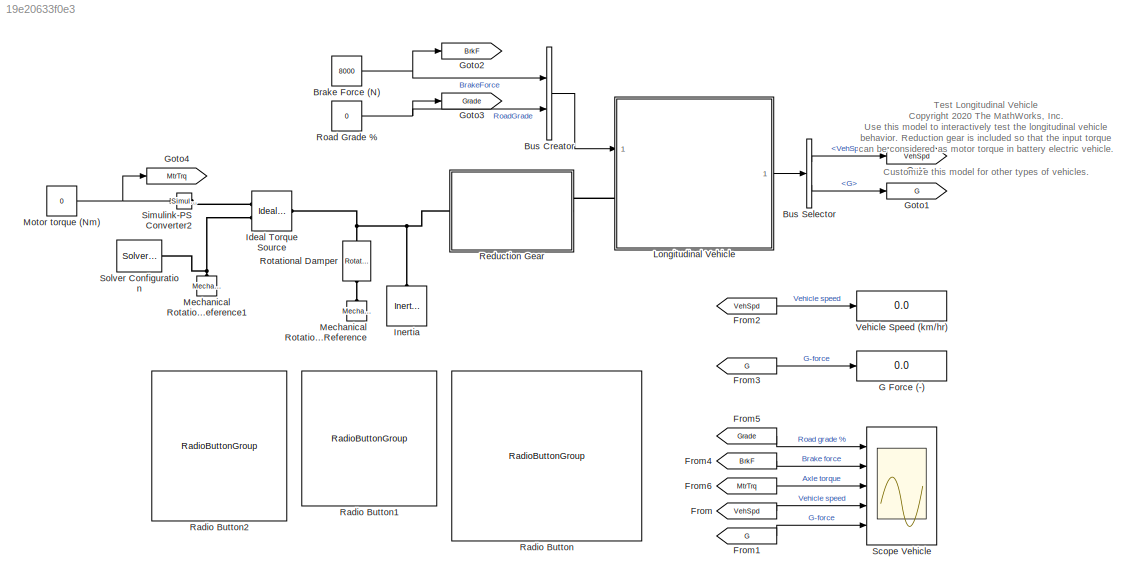
MODEL slx_19e20633f0e3
KIND model
CONFIG AbsTol = 1e-3
CONFIG EnableMultiTasking = off
CONFIG FixedStep = auto
CONFIG MaxStep = auto
CONFIG MinStep = auto
CONFIG PreLoadFcn = Vehicle1DBasic_testParams\n
CONFIG RelTol = 1e-3
CONFIG SampleTimeConstraint = Unconstrained
CONFIG SolverName = VariableStepAuto
CONFIG StartTime = 0.0
CONFIG StopTime = 120
BLOCK [Constant] Brake Force (N)
  NameLocation = left
  Value = 8000
BLOCK [BusCreator] Bus Creator
  DisplayOption = bar
  InheritFromInputs = on
  Inputs = 2
  Ports = [2, 1]
BLOCK [BusSelector] Bus Selector
  OutputSignals = VehSpd,G
  Ports = [1, 2]
BLOCK [From] From
  GotoTag = VehSpd
BLOCK [From] From1
  GotoTag = G
BLOCK [From] From2
  GotoTag = VehSpd
BLOCK [From] From3
  GotoTag = G
BLOCK [From] From4
  GotoTag = BrkF
BLOCK [From] From5
  GotoTag = Grade
BLOCK [From] From6
  GotoTag = MtrTrq
BLOCK [Display] G Force (-)
  Decimation = 1
  Ports = [1]
BLOCK [Goto] Goto
  GotoTag = VehSpd
BLOCK [Goto] Goto1
  GotoTag = G
BLOCK [Goto] Goto2
  GotoTag = BrkF
BLOCK [Goto] Goto3
  GotoTag = Grade
BLOCK [Goto] Goto4
  GotoTag = MtrTrq
BLOCK [Reference] Ideal Torque Source  REF=fl_lib/Mechanical/Mechanical Sources/Ideal Torque Source
  Ports = [0, 0, 0, 0, 0, 1, 2]
  SourceBlock = fl_lib/Mechanical/Mechanical Sources/Ideal Torque Source
  SourceProductBaseCode = SS
  SourceType = Ideal Torque Source
BLOCK [Reference] Inertia  REF=fl_lib/Mechanical/Rotational Elements/Inertia
  AttributesFormatString = %<inertia> %<inertia_unit>
  NameLocation = right
  Ports = [0, 0, 0, 0, 0, 1]
  SourceBlock = fl_lib/Mechanical/Rotational Elements/Inertia
  SourceProductBaseCode = SS
  SourceType = Inertia
BLOCK [SubSystem] Longitudinal Vehicle
  Ports = [1, 1, 0, 0, 0, 1]
  ReferencedSubsystem = Vehicle1DBasicRefSub
  RequestExecContextInheritance = off
BLOCK [Reference] Mechanical Rotational Reference  REF=fl_lib/Mechanical/Rotational Elements/Mechanical
Rotational Reference
  NameLocation = right
  Ports = [0, 0, 0, 0, 0, 1]
  SourceBlock = fl_lib/Mechanical/Rotational Elements/Mechanical\nRotational Reference
  SourceProductBaseCode = SS
  SourceType = Mechanical\nRotational Reference
BLOCK [Reference] Mechanical Rotational Reference1  REF=fl_lib/Mechanical/Rotational Elements/Mechanical
Rotational Reference
  NameLocation = right
  Ports = [0, 0, 0, 0, 0, 1]
  SourceBlock = fl_lib/Mechanical/Rotational Elements/Mechanical\nRotational Reference
  SourceProductBaseCode = SS
  SourceType = Mechanical\nRotational Reference
BLOCK [Constant] Motor torque (Nm)
  Value = 0
BLOCK [RadioButtonGroup] Radio Button
  ButtonGroupName = Group
  SelectedLabel = 0
BLOCK [RadioButtonGroup] Radio Button1
  ButtonGroupName = Group
  SelectedLabel = 8000 N
BLOCK [RadioButtonGroup] Radio Button2
  ButtonGroupName = Group
  SelectedLabel = 0
BLOCK [SubSystem] Reduction Gear
  Ports = [0, 0, 0, 0, 0, 1, 1]
  ReferencedSubsystem = ReducerBasicRefSub
  RequestExecContextInheritance = off
BLOCK [Constant] Road Grade %
  NameLocation = left
  Value = 0
BLOCK [Reference] Rotational Damper  REF=fl_lib/Mechanical/Rotational Elements/Rotational Damper
  AttributesFormatString = %<D> %<D_unit>
  NameLocation = left
  Ports = [0, 0, 0, 0, 0, 1, 1]
  SourceBlock = fl_lib/Mechanical/Rotational Elements/Rotational Damper
  SourceProductBaseCode = SS
  SourceType = Rotational Damper
BLOCK [Scope] Scope Vehicle
  Floating = off
  NumInputPorts = 5
  Ports = [5]
  ScopeSpecificationString = Simulink.scopes.TimeScopeBlockCfg('CurrentConfiguration', extmgr.ConfigurationSet(extmgr.Configuration('Core','General UI',true),extmgr.Configuration('Core','Source UI',true),extmgr.Configuration('Sources','WiredSimulink',true,'DataLoggingVariableName','ScopeData1'),extmgr.Configuration('Visuals','Time Domain',true,'SerializedDisplays',{struct('MinYLimReal','-35.00000','MaxYLimReal','15.00000','YL...<+4977ch>
BLOCK [Reference] Simulink-PS Converter2  REF=nesl_utility/Simulink-PS
Converter
  AttributesFormatString = %<Unit>
  Ports = [1, 0, 0, 0, 0, 0, 1]
  SourceBlock = nesl_utility/Simulink-PS\nConverter
  SourceProductBaseCode = SS
  SourceType = Simulink-PS\nConverter
BLOCK [Reference] Solver Configuration  REF=nesl_utility/Solver
Configuration
  AttributesFormatString = Local solver %<UseLocalSolver>
  Ports = [0, 0, 0, 0, 0, 0, 1]
  SourceBlock = nesl_utility/Solver\nConfiguration
  SourceProductBaseCode = SS
  SourceType = Solver\nConfiguration
BLOCK [Display] Vehicle Speed (km//hr)
  Decimation = 1
  Ports = [1]
ANNOTATION (root): Test Longitudinal Vehicle <copyright redacted>
NET Brake Force (N):1 -> Bus Creator:1, Goto2:1
LINE Bus Creator:1 -> Longitudinal Vehicle:1
LINE Bus Selector:1 -> Goto:1
LINE Bus Selector:2 -> Goto1:1
LINE From1:1 -> Scope Vehicle:5
LINE From2:1 -> Vehicle Speed (km//hr):1
LINE From3:1 -> G Force (-):1
LINE From4:1 -> Scope Vehicle:2
LINE From5:1 -> Scope Vehicle:1
LINE From6:1 -> Scope Vehicle:3
LINE From:1 -> Scope Vehicle:4
LINE Longitudinal Vehicle:1 -> Bus Selector:1
NET Motor torque (Nm):1 -> Goto4:1, Simulink-PS Converter2:1
NET Road Grade %:1 -> Bus Creator:2, Goto3:1
PNET net1: Ideal Torque Source:LConn1 -- Inertia:LConn1 -- Reduction Gear:LConn1 -- Rotational Damper:LConn1
PLINE Ideal Torque Source:RConn1 -- Simulink-PS Converter2:RConn1
PNET net2: Ideal Torque Source:RConn2 -- Mechanical Rotational Reference1:LConn1 -- Solver Configuration:RConn1
PLINE Longitudinal Vehicle:LConn1 -- Reduction Gear:RConn1
PLINE Mechanical Rotational Reference:LConn1 -- Rotational Damper:RConn1
note: NET lines group one-source signal fan-out (src -> all destinations, sorted); 1:1 wires keep LINE; PNET lines group multi-terminal physical nets as a canonical sorted terminal list (undirected conserving connections); 2-terminal nets keep the pairwise PLINE form
